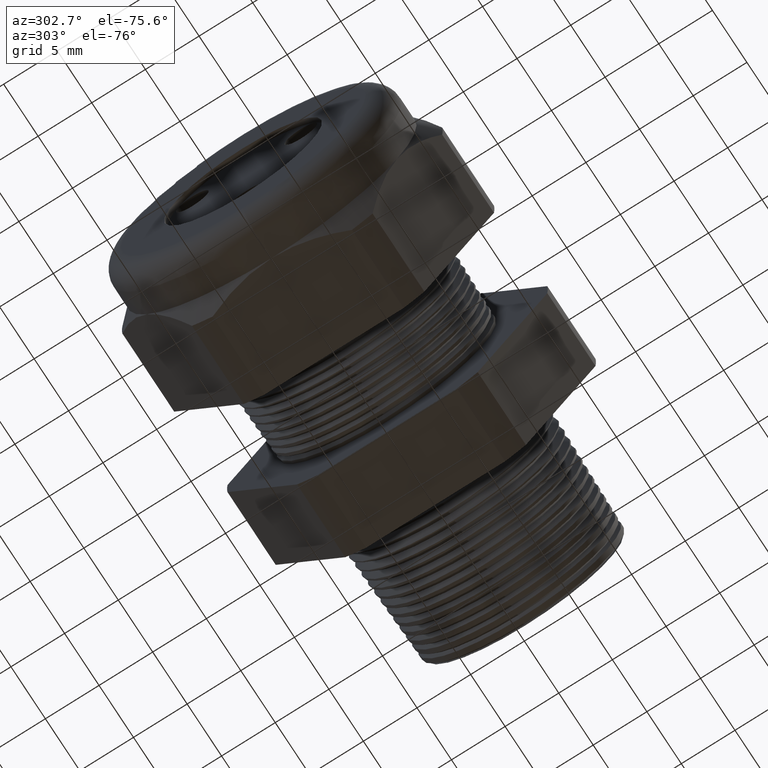
[diagram: clean part render]
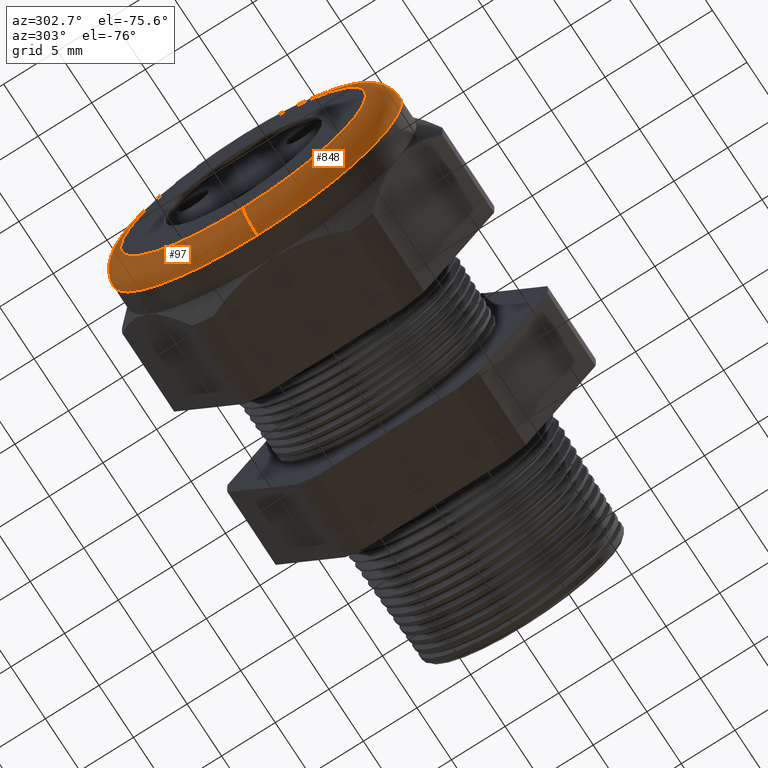
[diagram: same view with one multi-face feature highlighted, each face labeled with its STEP entity id]
A machine part, auxiliary view. The highlighted faces form ONE feature: a constant-radius fillet chain: 2 tangent blend faces with common blend radius 2.032 mm. The faces share edges in the B-rep.
Their STEP definitions:
[1] entity #848 (Torus):
#59 = VERTEX_POINT ( 'NONE', #1670 ) ;
#63 = VERTEX_POINT ( 'NONE', #1664 ) ;
#76 = EDGE_CURVE ( 'NONE', #59, #78, #1707, .T. ) ;
#78 = VERTEX_POINT ( 'NONE', #1701 ) ;
#80 = VERTEX_POINT ( 'NONE', #1700 ) ;
#117 = EDGE_CURVE ( 'NONE', #63, #80, #1812, .T. ) ;
#631 = EDGE_CURVE ( 'NONE', #78, #80, #2838, .T. ) ;
#644 = EDGE_CURVE ( 'NONE', #63, #59, #2821, .T. ) ;
#794 = EDGE_LOOP ( 'NONE', ( #849, #850, #851, #852 ) ) ;
#848 = ADVANCED_FACE ( 'NONE', ( #3152 ), #3151, .T. ) ;
#849 = ORIENTED_EDGE ( 'NONE', *, *, #76, .F. ) ;
#850 = ORIENTED_EDGE ( 'NONE', *, *, #644, .F. ) ;
#851 = ORIENTED_EDGE ( 'NONE', *, *, #117, .T. ) ;
#852 = ORIENTED_EDGE ( 'NONE', *, *, #631, .F. ) ;
#1664 = CARTESIAN_POINT ( 'NONE',  ( -1.330000000000000100, 6.490628035480971200E-017, 0.5299999999999999200 ) ) ;
#1670 = CARTESIAN_POINT ( 'NONE',  ( -1.330000000000000100, 0.0000000000000000000, -0.5299999999999999200 ) ) ;
#1700 = CARTESIAN_POINT ( 'NONE',  ( -1.409999999999999900, 0.0000000000000000000, 0.4499999999999999600 ) ) ;
#1701 = CARTESIAN_POINT ( 'NONE',  ( -1.409999999999999900, 6.000769315822029800E-017, -0.4499999999999999600 ) ) ;
#1703 = DIRECTION ( 'NONE',  ( 0.0000000000000000000, -1.224646799147353900E-016, 1.000000000000000000 ) ) ;
#1704 = DIRECTION ( 'NONE',  ( 0.0000000000000000000, 1.000000000000000000, 1.224646799147353200E-016 ) ) ;
#1705 = CARTESIAN_POINT ( 'NONE',  ( -1.330000000000000100, 5.510910596163088900E-017, -0.4499999999999999600 ) ) ;
#1706 = AXIS2_PLACEMENT_3D ( 'NONE', #1705, #1704, #1703 ) ;
#1707 = CIRCLE ( 'NONE', #1706, 0.07999999999999996000 ) ;
#1756 = CARTESIAN_POINT ( 'NONE',  ( -1.330000000000000100, 0.0000000000000000000, 0.4499999999999999600 ) ) ;
#1809 = DIRECTION ( 'NONE',  ( 0.0000000000000000000, 0.0000000000000000000, -1.000000000000000000 ) ) ;
#1810 = DIRECTION ( 'NONE',  ( 0.0000000000000000000, -1.000000000000000000, 0.0000000000000000000 ) ) ;
#1811 = AXIS2_PLACEMENT_3D ( 'NONE', #1756, #1810, #1809 ) ;
#1812 = CIRCLE ( 'NONE', #1811, 0.07999999999999996000 ) ;
#2818 = DIRECTION ( 'NONE',  ( 0.0000000000000000000, 0.0000000000000000000, 1.000000000000000000 ) ) ;
#2819 = DIRECTION ( 'NONE',  ( 1.000000000000000000, 0.0000000000000000000, 0.0000000000000000000 ) ) ;
#2820 = AXIS2_PLACEMENT_3D ( 'NONE', #2826, #2819, #2818 ) ;
#2821 = CIRCLE ( 'NONE', #2820, 0.5299999999999999200 ) ;
#2826 = CARTESIAN_POINT ( 'NONE',  ( -1.330000000000000100, 0.0000000000000000000, 0.0000000000000000000 ) ) ;
#2834 = DIRECTION ( 'NONE',  ( 0.0000000000000000000, 0.0000000000000000000, 1.000000000000000000 ) ) ;
#2835 = DIRECTION ( 'NONE',  ( -1.000000000000000000, 0.0000000000000000000, 0.0000000000000000000 ) ) ;
#2836 = CARTESIAN_POINT ( 'NONE',  ( -1.409999999999999900, 0.0000000000000000000, 0.0000000000000000000 ) ) ;
#2837 = AXIS2_PLACEMENT_3D ( 'NONE', #2836, #2835, #2834 ) ;
#2838 = CIRCLE ( 'NONE', #2837, 0.4499999999999999600 ) ;
#3148 = DIRECTION ( 'NONE',  ( 0.0000000000000000000, 0.0000000000000000000, 1.000000000000000000 ) ) ;
#3149 = DIRECTION ( 'NONE',  ( -1.000000000000000000, 0.0000000000000000000, 0.0000000000000000000 ) ) ;
#3150 = AXIS2_PLACEMENT_3D ( 'NONE', #3156, #3149, #3148 ) ;
#3151 = TOROIDAL_SURFACE ( 'NONE', #3150, 0.4499999999999999600, 0.08000000000000000200 ) ;
#3152 = FACE_OUTER_BOUND ( 'NONE', #794, .T. ) ;
#3156 = CARTESIAN_POINT ( 'NONE',  ( -1.330000000000000100, 0.0000000000000000000, 0.0000000000000000000 ) ) ;
[2] entity #97 (Torus):
#58 = ORIENTED_EDGE ( 'NONE', *, *, #76, .T. ) ;
#59 = VERTEX_POINT ( 'NONE', #1670 ) ;
#63 = VERTEX_POINT ( 'NONE', #1664 ) ;
#76 = EDGE_CURVE ( 'NONE', #59, #78, #1707, .T. ) ;
#78 = VERTEX_POINT ( 'NONE', #1701 ) ;
#80 = VERTEX_POINT ( 'NONE', #1700 ) ;
#87 = ORIENTED_EDGE ( 'NONE', *, *, #88, .F. ) ;
#88 = EDGE_CURVE ( 'NONE', #80, #78, #1748, .T. ) ;
#96 = ORIENTED_EDGE ( 'NONE', *, *, #115, .F. ) ;
#97 = ADVANCED_FACE ( 'NONE', ( #1782 ), #1781, .T. ) ;
#110 = ORIENTED_EDGE ( 'NONE', *, *, #117, .F. ) ;
#115 = EDGE_CURVE ( 'NONE', #59, #63, #1817, .T. ) ;
#117 = EDGE_CURVE ( 'NONE', #63, #80, #1812, .T. ) ;
#1664 = CARTESIAN_POINT ( 'NONE',  ( -1.330000000000000100, 6.490628035480971200E-017, 0.5299999999999999200 ) ) ;
#1670 = CARTESIAN_POINT ( 'NONE',  ( -1.330000000000000100, 0.0000000000000000000, -0.5299999999999999200 ) ) ;
#1700 = CARTESIAN_POINT ( 'NONE',  ( -1.409999999999999900, 0.0000000000000000000, 0.4499999999999999600 ) ) ;
#1701 = CARTESIAN_POINT ( 'NONE',  ( -1.409999999999999900, 6.000769315822029800E-017, -0.4499999999999999600 ) ) ;
#1703 = DIRECTION ( 'NONE',  ( 0.0000000000000000000, -1.224646799147353900E-016, 1.000000000000000000 ) ) ;
#1704 = DIRECTION ( 'NONE',  ( 0.0000000000000000000, 1.000000000000000000, 1.224646799147353200E-016 ) ) ;
#1705 = CARTESIAN_POINT ( 'NONE',  ( -1.330000000000000100, 5.510910596163088900E-017, -0.4499999999999999600 ) ) ;
#1706 = AXIS2_PLACEMENT_3D ( 'NONE', #1705, #1704, #1703 ) ;
#1707 = CIRCLE ( 'NONE', #1706, 0.07999999999999996000 ) ;
#1744 = DIRECTION ( 'NONE',  ( 0.0000000000000000000, 0.0000000000000000000, 1.000000000000000000 ) ) ;
#1745 = DIRECTION ( 'NONE',  ( -1.000000000000000000, 0.0000000000000000000, 0.0000000000000000000 ) ) ;
#1746 = CARTESIAN_POINT ( 'NONE',  ( -1.409999999999999900, 0.0000000000000000000, 0.0000000000000000000 ) ) ;
#1747 = AXIS2_PLACEMENT_3D ( 'NONE', #1746, #1745, #1744 ) ;
#1748 = CIRCLE ( 'NONE', #1747, 0.4499999999999999600 ) ;
#1756 = CARTESIAN_POINT ( 'NONE',  ( -1.330000000000000100, 0.0000000000000000000, 0.4499999999999999600 ) ) ;
#1778 = DIRECTION ( 'NONE',  ( 0.0000000000000000000, 0.0000000000000000000, 1.000000000000000000 ) ) ;
#1779 = DIRECTION ( 'NONE',  ( -1.000000000000000000, 0.0000000000000000000, 0.0000000000000000000 ) ) ;
#1780 = AXIS2_PLACEMENT_3D ( 'NONE', #1786, #1779, #1778 ) ;
#1781 = TOROIDAL_SURFACE ( 'NONE', #1780, 0.4499999999999999600, 0.08000000000000000200 ) ;
#1782 = FACE_OUTER_BOUND ( 'NONE', #5485, .T. ) ;
#1786 = CARTESIAN_POINT ( 'NONE',  ( -1.330000000000000100, 0.0000000000000000000, 0.0000000000000000000 ) ) ;
#1809 = DIRECTION ( 'NONE',  ( 0.0000000000000000000, 0.0000000000000000000, -1.000000000000000000 ) ) ;
#1810 = DIRECTION ( 'NONE',  ( 0.0000000000000000000, -1.000000000000000000, 0.0000000000000000000 ) ) ;
#1811 = AXIS2_PLACEMENT_3D ( 'NONE', #1756, #1810, #1809 ) ;
#1812 = CIRCLE ( 'NONE', #1811, 0.07999999999999996000 ) ;
#1813 = DIRECTION ( 'NONE',  ( 0.0000000000000000000, 0.0000000000000000000, 1.000000000000000000 ) ) ;
#1814 = DIRECTION ( 'NONE',  ( 1.000000000000000000, 0.0000000000000000000, 0.0000000000000000000 ) ) ;
#1815 = CARTESIAN_POINT ( 'NONE',  ( -1.330000000000000100, 0.0000000000000000000, 0.0000000000000000000 ) ) ;
#1816 = AXIS2_PLACEMENT_3D ( 'NONE', #1815, #1814, #1813 ) ;
#1817 = CIRCLE ( 'NONE', #1816, 0.5299999999999999200 ) ;
#5485 = EDGE_LOOP ( 'NONE', ( #96, #58, #87, #110 ) ) ;